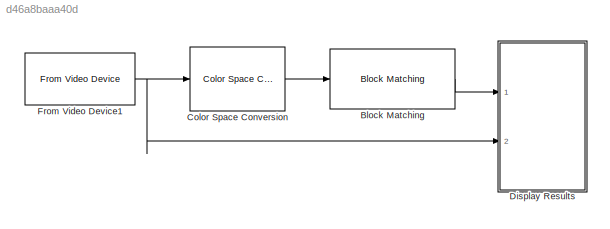
MODEL slx_d46a8baaa40d
KIND model
CONFIG AbsTol = auto
CONFIG FixedStep = auto
CONFIG MaxStep = auto
CONFIG MinStep = auto
CONFIG RelTol = 1e-3
CONFIG SampleTimeConstraint = Unconstrained
CONFIG Solver = VariableStepAuto
CONFIG SolverMode = Auto
CONFIG SolverName = VariableStepAuto
CONFIG StartTime = 0.0
CONFIG StopTime = 10.0
BLOCK [Reference] Block Matching  REF=visionanalysis/Block Matching
  Ports = [1, 1]
  SourceBlock = visionanalysis/Block Matching
  SourceType = Block Matching
BLOCK [Reference] Color Space Conversion  REF=visionconversions/Color Space
 Conversion
  Ports = [1, 1]
  SourceBlock = visionconversions/Color Space\n Conversion
  SourceType = Color Space Conversion
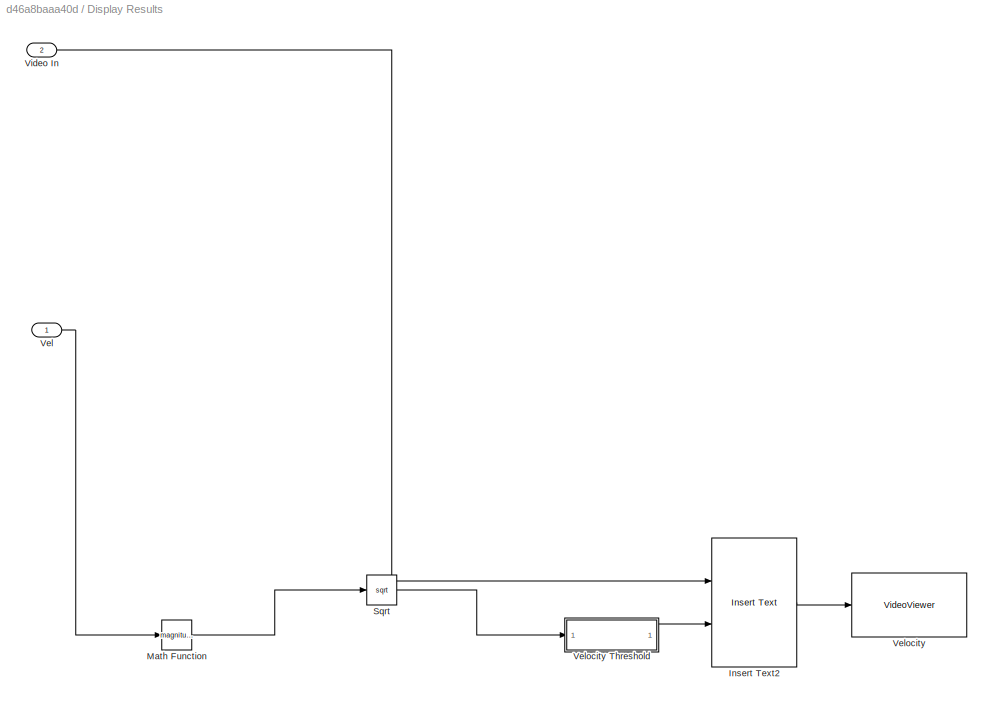
BLOCK [SubSystem] Display Results
  Ports = [2]
  RequestExecContextInheritance = off
  Variant = off
BLOCK [Reference] Display Results/Insert Text2  REF=visiontextngfix/Insert Text
  Ports = [2, 1]
  SourceBlock = visiontextngfix/Insert Text
  SourceType = Insert Text
BLOCK [Math] Display Results/Math Function
  Operator = magnitude^2
  Ports = [1, 1]
BLOCK [Sqrt] Display Results/Sqrt
BLOCK [Inport] Display Results/Vel
  IconDisplay = Port number
BLOCK [VideoViewer] Display Results/Velocity
  FigPos = [68 635 525 420]
  Ports = [1]
  ScopeSpecificationString = vipscopes.VideoViewerScopeCfg('CurrentConfiguration', extmgr.ConfigurationSet(extmgr.Configuration('Core','General UI',true,'ShowPlaybackToolbar',false,'FigureProperties',[]),extmgr.Configuration('Core','Source UI',true),extmgr.Configuration('Sources','WiredSimulink',true),extmgr.Configuration('Sources','Simulink',false),extmgr.Configuration('Sources','Workspace',false),extmgr.Configuration('Sourc...<+909ch>
  colormapValue = gray(256)
  trueSizedOnce = on
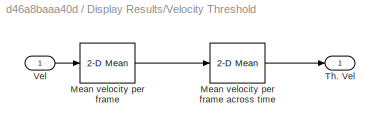
BLOCK [SubSystem] Display Results/Velocity Threshold
  Ports = [1, 1]
  RequestExecContextInheritance = off
  Variant = off
BLOCK [Reference] Display Results/Velocity Threshold/Mean velocity per frame  REF=visionstatistics/2-D Mean
  Ports = [1, 1]
  SourceBlock = visionstatistics/2-D Mean
  SourceType = 2-D Mean
  UserDataPersistent = on
BLOCK [Reference] Display Results/Velocity Threshold/Mean velocity per frame across time  REF=visionstatistics/2-D Mean
  Ports = [1, 1]
  SourceBlock = visionstatistics/2-D Mean
  SourceType = 2-D Mean
  UserDataPersistent = on
BLOCK [Outport] Display Results/Velocity Threshold/Th. Vel
  IconDisplay = Port number
BLOCK [Inport] Display Results/Velocity Threshold/Vel
  IconDisplay = Port number
BLOCK [Inport] Display Results/Video In
  IconDisplay = Port number
  Port = 2
BLOCK [Reference] From Video Device1  REF=imaqlib/From Video Device
  Ports = [0, 1]
  SourceBlock = imaqlib/From Video Device
  SourceType = From Video Device
  UserDataPersistent = on
LINE Block Matching:1 -> Display Results:1
LINE Color Space Conversion:1 -> Block Matching:1
LINE Display Results/Insert Text2:1 -> Display Results/Velocity:1
LINE Display Results/Math Function:1 -> Display Results/Sqrt:1
LINE Display Results/Sqrt:1 -> Display Results/Velocity Threshold:1
LINE Display Results/Vel:1 -> Display Results/Math Function:1
LINE Display Results/Velocity Threshold/Mean velocity per frame across time:1 -> Display Results/Velocity Threshold/Th. Vel:1
LINE Display Results/Velocity Threshold/Mean velocity per frame:1 -> Display Results/Velocity Threshold/Mean velocity per frame across time:1
LINE Display Results/Velocity Threshold/Vel:1 -> Display Results/Velocity Threshold/Mean velocity per frame:1
LINE Display Results/Velocity Threshold:1 -> Display Results/Insert Text2:2
LINE Display Results/Video In:1 -> Display Results/Insert Text2:1
NET From Video Device1:1 -> Color Space Conversion:1, Display Results:2
note: NET lines group one-source signal fan-out (src -> all destinations, sorted); 1:1 wires keep LINE
